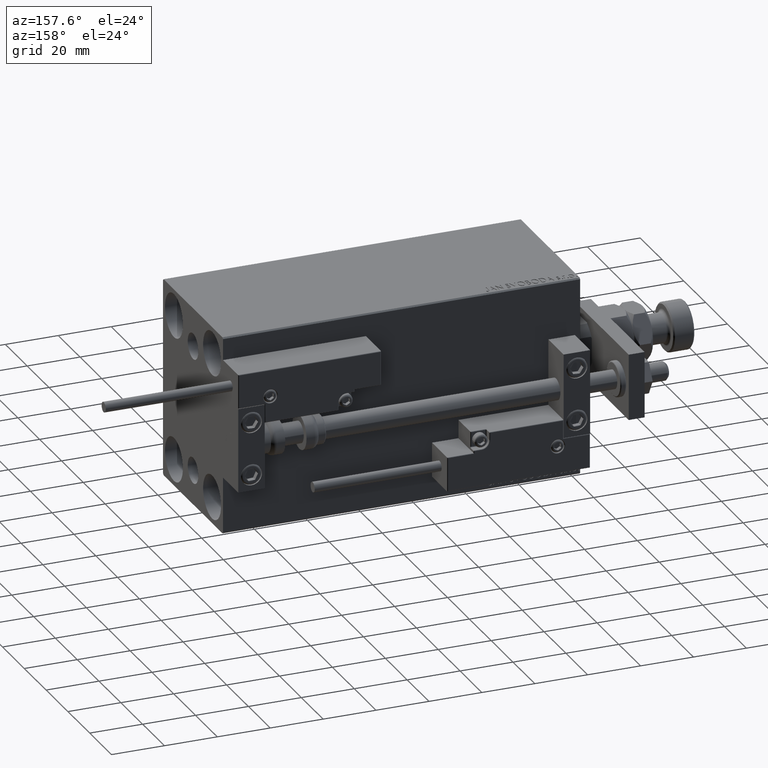
[diagram: clean part render]
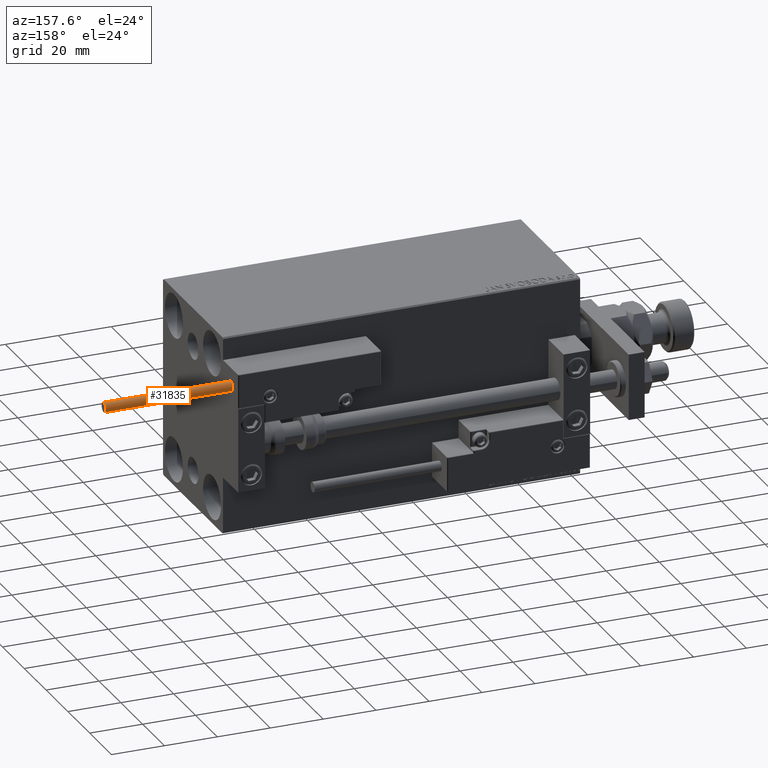
[diagram: same view with one face highlighted and labeled with its STEP entity id]
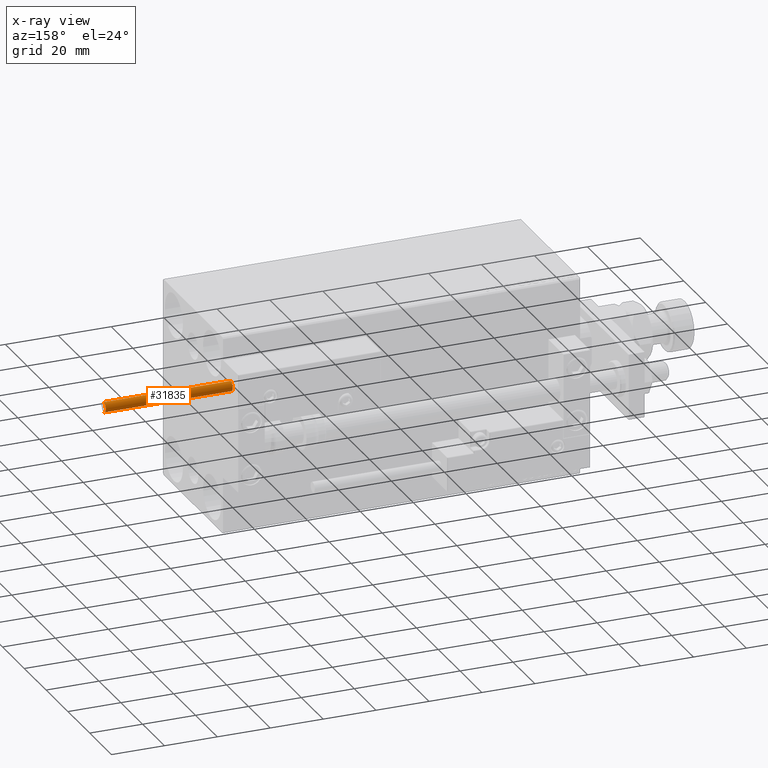
[diagram: x-ray of the same camera — body ghosted, the highlighted face saturated]
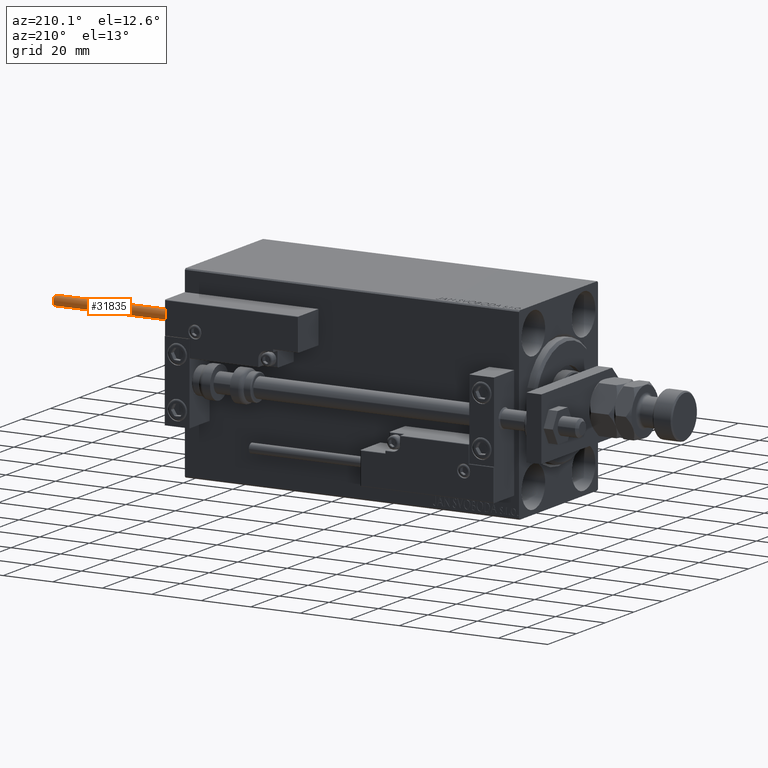
[diagram: same view with one face highlighted and labeled with its STEP entity id]
A machine part, auxiliary view. The second image highlights one B-rep face of the part: STEP entity #31835.
The next image is the same camera in x-ray: the body ghosted, the highlighted face saturated — about 0% of this face is hidden behind the body in this view.
A second angle (auxiliary view) of the same face is appended — the face is thin or edge-on in the first view.
In plain terms, the highlighted cylindrical surface (edge-blend (fillet) strip) has radius 1.9 mm, axis along (-1, -0, 0).
Its self-contained STEP definition (entity closure, byte-faithful):
#447 = CARTESIAN_POINT ( 'NONE',  ( 1.899999999999999467, 2.326828918379970872E-16, 0.000000000000000000 ) ) ;
#1510 = CARTESIAN_POINT ( 'NONE',  ( 0.000000000000000000, 0.000000000000000000, 0.000000000000000000 ) ) ;
#1611 = CARTESIAN_POINT ( 'NONE',  ( -1.899999999999999467, 0.000000000000000000, 0.000000000000000000 ) ) ;
#1888 = AXIS2_PLACEMENT_3D ( 'NONE', #10418, #50320, #27106 ) ;
#4621 = DIRECTION ( 'NONE',  ( -0.000000000000000000, -0.000000000000000000, -1.000000000000000000 ) ) ;
#6248 = FACE_OUTER_BOUND ( 'NONE', #39884, .T. ) ;
#6693 = LINE ( 'NONE', #34092, #14613 ) ;
#10418 = CARTESIAN_POINT ( 'NONE',  ( 0.000000000000000000, 0.000000000000000000, 48.00000000000000000 ) ) ;
#10631 = VERTEX_POINT ( 'NONE', #34194 ) ;
#11185 = CYLINDRICAL_SURFACE ( 'NONE', #1888, 1.899999999999999467 ) ;
#12011 = AXIS2_PLACEMENT_3D ( 'NONE', #1510, #13758, #21852 ) ;
#13758 = DIRECTION ( 'NONE',  ( 0.000000000000000000, 0.000000000000000000, 1.000000000000000000 ) ) ;
#14613 = VECTOR ( 'NONE', #33828, 1000.000000000000000 ) ;
#15433 = ORIENTED_EDGE ( 'NONE', *, *, #24577, .F. ) ;
#15865 = LINE ( 'NONE', #16123, #21069 ) ;
#16123 = CARTESIAN_POINT ( 'NONE',  ( -1.899999999999999467, 0.000000000000000000, 48.00000000000000000 ) ) ;
#21069 = VECTOR ( 'NONE', #4621, 1000.000000000000000 ) ;
#21852 = DIRECTION ( 'NONE',  ( 1.000000000000000000, 0.000000000000000000, 0.000000000000000000 ) ) ;
#21918 = VERTEX_POINT ( 'NONE', #447 ) ;
#23407 = ORIENTED_EDGE ( 'NONE', *, *, #36922, .T. ) ;
#24577 = EDGE_CURVE ( 'NONE', #31192, #32709, #15865, .T. ) ;
#27106 = DIRECTION ( 'NONE',  ( -1.000000000000000000, 0.000000000000000000, 0.000000000000000000 ) ) ;
#27419 = DIRECTION ( 'NONE',  ( 0.000000000000000000, 0.000000000000000000, 1.000000000000000000 ) ) ;
#30406 = CIRCLE ( 'NONE', #41235, 1.899999999999999467 ) ;
#31077 = CIRCLE ( 'NONE', #12011, 1.899999999999999467 ) ;
#31192 = VERTEX_POINT ( 'NONE', #31966 ) ;
#31835 = ADVANCED_FACE ( 'NONE', ( #6248 ), #11185, .T. ) ;
#31966 = CARTESIAN_POINT ( 'NONE',  ( -1.899999999999999467, 0.000000000000000000, 48.00000000000000000 ) ) ;
#32709 = VERTEX_POINT ( 'NONE', #1611 ) ;
#33828 = DIRECTION ( 'NONE',  ( -0.000000000000000000, -0.000000000000000000, -1.000000000000000000 ) ) ;
#34092 = CARTESIAN_POINT ( 'NONE',  ( 1.899999999999999467, 2.326828918379970872E-16, 48.00000000000000000 ) ) ;
#34194 = CARTESIAN_POINT ( 'NONE',  ( 1.899999999999999467, 2.326828918379970872E-16, 48.00000000000000000 ) ) ;
#36922 = EDGE_CURVE ( 'NONE', #21918, #32709, #31077, .T. ) ;
#39884 = EDGE_LOOP ( 'NONE', ( #49855, #45523, #23407, #15433 ) ) ;
#41235 = AXIS2_PLACEMENT_3D ( 'NONE', #46260, #27419, #50177 ) ;
#42399 = EDGE_CURVE ( 'NONE', #10631, #31192, #30406, .T. ) ;
#43499 = EDGE_CURVE ( 'NONE', #10631, #21918, #6693, .T. ) ;
#45523 = ORIENTED_EDGE ( 'NONE', *, *, #43499, .T. ) ;
#46260 = CARTESIAN_POINT ( 'NONE',  ( 0.000000000000000000, 0.000000000000000000, 48.00000000000000000 ) ) ;
#49855 = ORIENTED_EDGE ( 'NONE', *, *, #42399, .F. ) ;
#50177 = DIRECTION ( 'NONE',  ( 1.000000000000000000, 0.000000000000000000, 0.000000000000000000 ) ) ;
#50320 = DIRECTION ( 'NONE',  ( -0.000000000000000000, -0.000000000000000000, -1.000000000000000000 ) ) ;